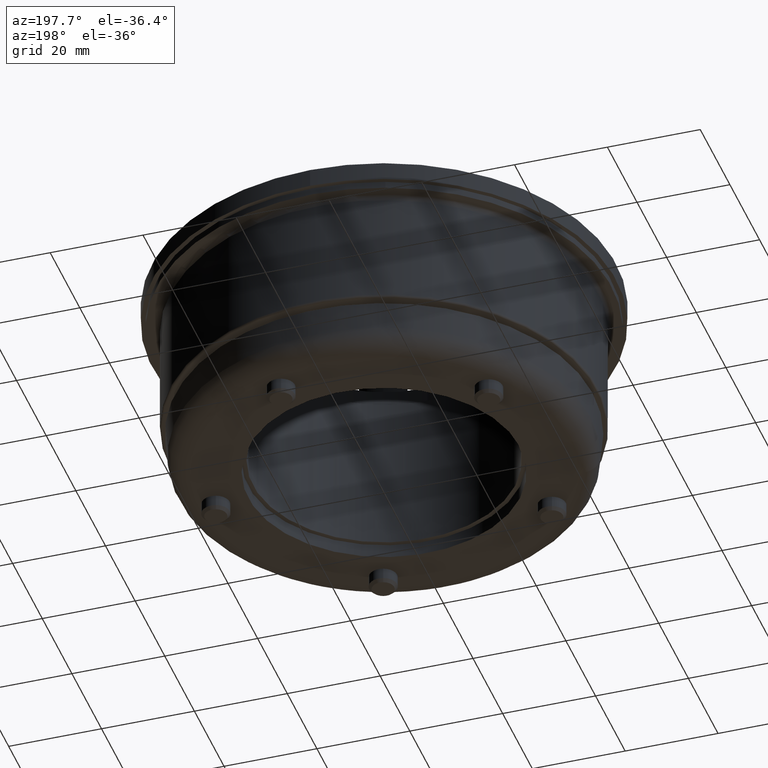
[diagram: clean part render]
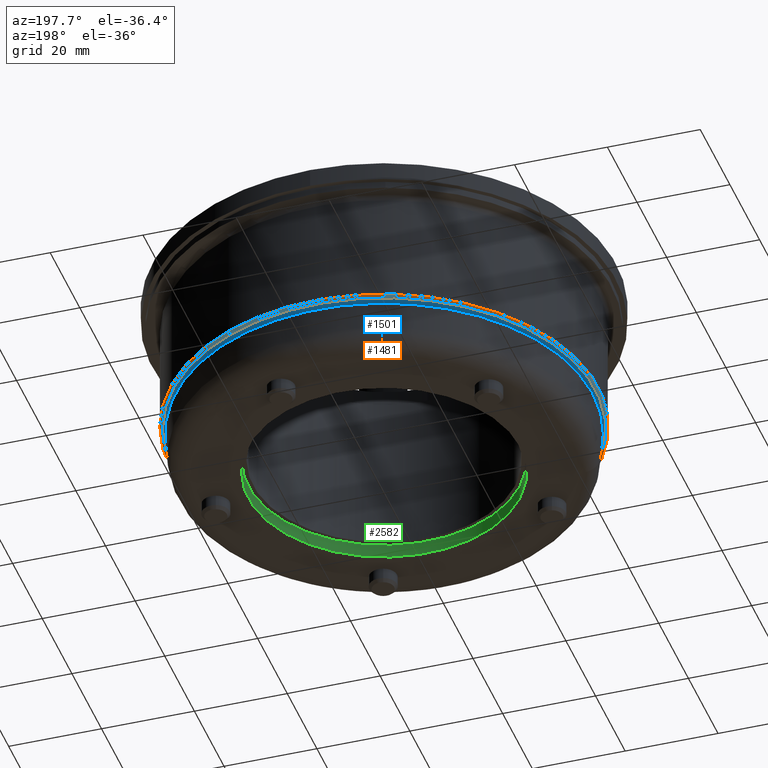
[diagram: same view with three faces highlighted in distinct colors, each labeled with its STEP entity id]
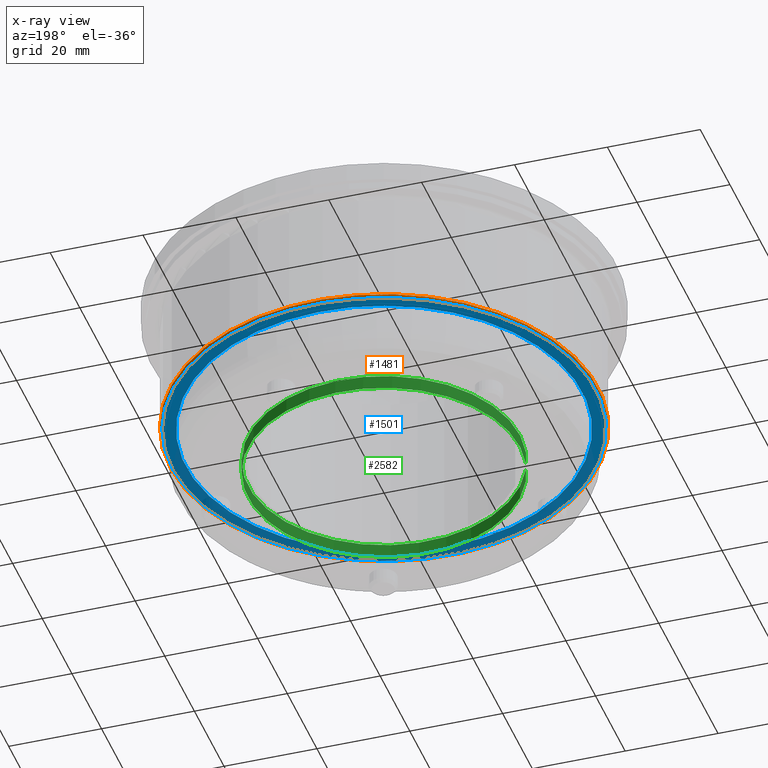
[diagram: x-ray of the same camera — body ghosted, the three highlighted faces saturated]
A machine part, auxiliary view with three faces highlighted in distinct colors.
The next image is the same camera in x-ray (body ghosted, the three faces saturated) — at least one of them is partly hidden behind the body in this view.
Their STEP definitions:

[orange] entity #1481 — the highlighted toroidal blend (fillet) surface has major radius 45.5 mm and minor (blend) radius 0.5 mm.
#1454=CARTESIAN_POINT('',(-5.551115E-016,5.551115E-016,8.499999999999998));
#1455=DIRECTION('',(0.0,0.0,1.0));
#1456=DIRECTION('',(1.0,0.0,0.0));
#1457=AXIS2_PLACEMENT_3D('',#1454,#1455,#1456);
#1458=TOROIDAL_SURFACE('',#1457,45.500000000000007,0.5);
#1459=CARTESIAN_POINT('',(45.500000000000007,6.127254E-015,7.999999999999997));
#1460=VERTEX_POINT('',#1459);
#1461=CARTESIAN_POINT('',(-5.551115E-016,5.551115E-016,7.999999999999997));
#1462=DIRECTION('',(0.0,0.0,1.0));
#1463=DIRECTION('',(-1.0,0.0,0.0));
#1464=AXIS2_PLACEMENT_3D('',#1461,#1462,#1463);
#1465=CIRCLE('',#1464,45.500000000000007);
#1466=EDGE_CURVE('',#1460,#1460,#1465,.T.);
#1467=ORIENTED_EDGE('',*,*,#1466,.T.);
#1468=EDGE_LOOP('',(#1467));
#1469=FACE_OUTER_BOUND('',#1468,.T.);
#1470=CARTESIAN_POINT('',(46.000000000000007,-5.078264E-015,8.499999999999998));
#1471=VERTEX_POINT('',#1470);
#1472=CARTESIAN_POINT('',(-5.551115E-016,5.551115E-016,8.499999999999998));
#1473=DIRECTION('',(0.0,0.0,-1.0));
#1474=DIRECTION('',(-1.0,0.0,0.0));
#1475=AXIS2_PLACEMENT_3D('',#1472,#1473,#1474);
#1476=CIRCLE('',#1475,46.000000000000007);
#1477=EDGE_CURVE('',#1471,#1471,#1476,.T.);
#1478=ORIENTED_EDGE('',*,*,#1477,.T.);
#1479=EDGE_LOOP('',(#1478));
#1480=FACE_BOUND('',#1479,.T.);
#1481=ADVANCED_FACE('',(#1469,#1480),#1458,.T.);

[blue] entity #1501 — the highlighted planar face has unit normal (-0, -0, 1).
#1459=CARTESIAN_POINT('',(45.500000000000007,6.127254E-015,7.999999999999997));
#1460=VERTEX_POINT('',#1459);
#1461=CARTESIAN_POINT('',(-5.551115E-016,5.551115E-016,7.999999999999997));
#1462=DIRECTION('',(0.0,0.0,1.0));
#1463=DIRECTION('',(-1.0,0.0,0.0));
#1464=AXIS2_PLACEMENT_3D('',#1461,#1462,#1463);
#1465=CIRCLE('',#1464,45.500000000000007);
#1466=EDGE_CURVE('',#1460,#1460,#1465,.T.);
#1482=CARTESIAN_POINT('',(0.0,43.800000000000011,7.999999999999997));
#1483=DIRECTION('',(0.0,0.0,1.0));
#1484=DIRECTION('',(1.0,0.0,0.0));
#1485=AXIS2_PLACEMENT_3D('',#1482,#1483,#1484);
#1486=PLANE('',#1485);
#1487=ORIENTED_EDGE('',*,*,#1466,.F.);
#1488=EDGE_LOOP('',(#1487));
#1489=FACE_OUTER_BOUND('',#1488,.T.);
#1490=CARTESIAN_POINT('',(-5.226651E-015,-42.678842510491506,7.999999999999997));
#1491=VERTEX_POINT('',#1490);
#1492=CARTESIAN_POINT('',(0.0,0.0,7.999999999999997));
#1493=DIRECTION('',(0.0,0.0,-1.0));
#1494=DIRECTION('',(0.0,1.0,0.0));
#1495=AXIS2_PLACEMENT_3D('',#1492,#1493,#1494);
#1496=CIRCLE('',#1495,42.678842510491506);
#1497=EDGE_CURVE('',#1491,#1491,#1496,.T.);
#1498=ORIENTED_EDGE('',*,*,#1497,.F.);
#1499=EDGE_LOOP('',(#1498));
#1500=FACE_BOUND('',#1499,.T.);
#1501=ADVANCED_FACE('',(#1489,#1500),#1486,.F.);

[green] entity #2582 — the highlighted cylindrical surface (bore or boss wall) has radius 29.25 mm, axis along (-0, -0, 1).
#2555=CARTESIAN_POINT('',(-9.769999999999993,-2.999999999999992,0.0));
#2556=DIRECTION('',(-2.220446E-016,1.0,0.0));
#2557=DIRECTION('',(-1.0,0.0,0.0));
#2558=AXIS2_PLACEMENT_3D('',#2555,#2556,#2557);
#2559=CYLINDRICAL_SURFACE('',#2558,29.250000000000004);
#2560=CARTESIAN_POINT('',(19.480000000000008,1.426637E-014,3.582092E-015));
#2561=VERTEX_POINT('',#2560);
#2562=CARTESIAN_POINT('',(-9.769999999999993,7.771561E-015,0.0));
#2563=DIRECTION('',(0.0,-1.0,0.0));
#2564=DIRECTION('',(-1.0,0.0,0.0));
#2565=AXIS2_PLACEMENT_3D('',#2562,#2563,#2564);
#2566=CIRCLE('',#2565,29.250000000000004);
#2567=EDGE_CURVE('',#2561,#2561,#2566,.T.);
#2568=ORIENTED_EDGE('',*,*,#2567,.F.);
#2569=EDGE_LOOP('',(#2568));
#2570=FACE_OUTER_BOUND('',#2569,.T.);
#2571=CARTESIAN_POINT('',(19.480000000000011,-2.999999999999985,3.582092E-015));
#2572=VERTEX_POINT('',#2571);
#2573=CARTESIAN_POINT('',(-9.769999999999993,-2.999999999999992,0.0));
#2574=DIRECTION('',(0.0,1.0,0.0));
#2575=DIRECTION('',(-1.0,0.0,0.0));
#2576=AXIS2_PLACEMENT_3D('',#2573,#2574,#2575);
#2577=CIRCLE('',#2576,29.250000000000004);
#2578=EDGE_CURVE('',#2572,#2572,#2577,.T.);
#2579=ORIENTED_EDGE('',*,*,#2578,.F.);
#2580=EDGE_LOOP('',(#2579));
#2581=FACE_BOUND('',#2580,.T.);
#2582=ADVANCED_FACE('',(#2570,#2581),#2559,.F.);